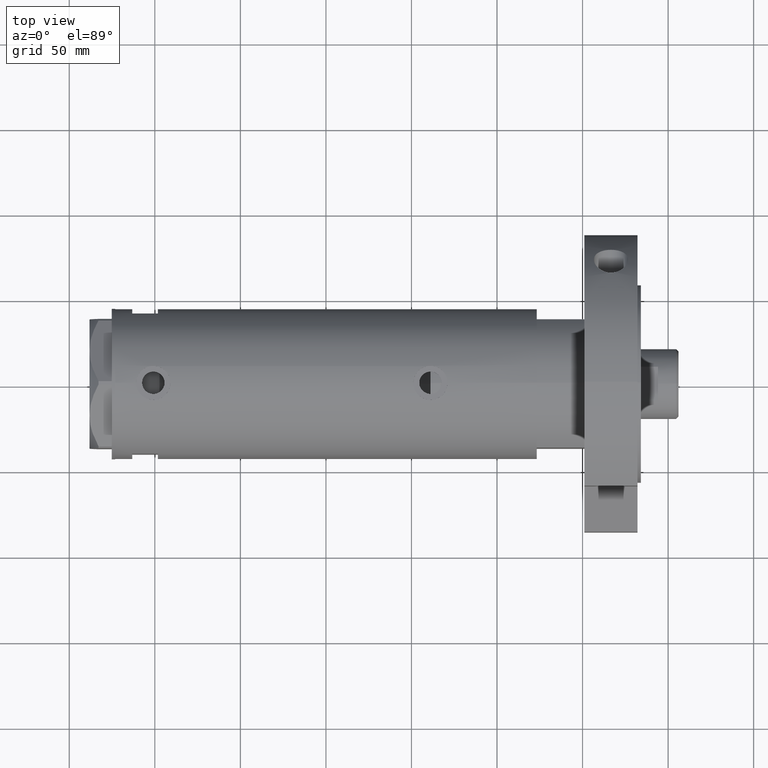
[diagram: clean part render]
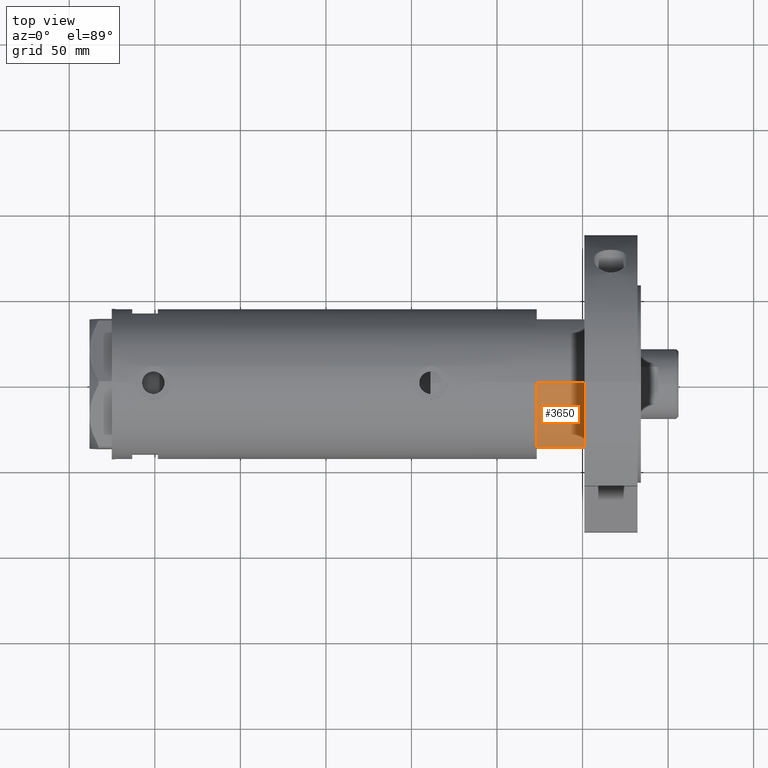
[diagram: same view with one face highlighted and labeled with its STEP entity id]
A machine part, top view. The second image highlights one B-rep face of the part: STEP entity #3650.
In plain terms, the highlighted cylindrical surface (partial cylindrical patch) has radius 44 mm, axis along (-1, -0, 0).
Its self-contained STEP definition (entity closure, byte-faithful):
#394 = VECTOR ( 'NONE', #6437, 1000.000000000000000 ) ;
#481 = CARTESIAN_POINT ( 'NONE',  ( -44.00000000000000000, 0.000000000000000000, 27.89999999999999858 ) ) ;
#558 = DIRECTION ( 'NONE',  ( -0.000000000000000000, -0.000000000000000000, -1.000000000000000000 ) ) ;
#830 = DIRECTION ( 'NONE',  ( -0.000000000000000000, -0.000000000000000000, -1.000000000000000000 ) ) ;
#1103 = ORIENTED_EDGE ( 'NONE', *, *, #6548, .T. ) ;
#1413 = CARTESIAN_POINT ( 'NONE',  ( 0.000000000000000000, 0.000000000000000000, 27.89999999999999858 ) ) ;
#1531 = CARTESIAN_POINT ( 'NONE',  ( -44.00000000000000000, 0.000000000000000000, 0.000000000000000000 ) ) ;
#1697 = VERTEX_POINT ( 'NONE', #481 ) ;
#1721 = DIRECTION ( 'NONE',  ( 0.000000000000000000, 0.000000000000000000, 1.000000000000000000 ) ) ;
#2463 = EDGE_CURVE ( 'NONE', #4795, #5416, #6165, .T. ) ;
#2871 = LINE ( 'NONE', #4107, #394 ) ;
#2886 = ORIENTED_EDGE ( 'NONE', *, *, #2463, .T. ) ;
#3066 = CARTESIAN_POINT ( 'NONE',  ( -23.01629857296780557, -37.50000000000000000, 0.000000000000000000 ) ) ;
#3148 = CIRCLE ( 'NONE', #4111, 44.00000000000000000 ) ;
#3185 = EDGE_LOOP ( 'NONE', ( #4271, #4583, #2886, #1103 ) ) ;
#3594 = AXIS2_PLACEMENT_3D ( 'NONE', #4127, #5894, #6493 ) ;
#3650 = ADVANCED_FACE ( 'NONE', ( #5580 ), #3791, .T. ) ;
#3791 = CYLINDRICAL_SURFACE ( 'NONE', #7399, 44.00000000000000000 ) ;
#3815 = EDGE_CURVE ( 'NONE', #1697, #6953, #3148, .T. ) ;
#4107 = CARTESIAN_POINT ( 'NONE',  ( -23.01629857296780557, -37.50000000000000000, 0.000000000000000000 ) ) ;
#4111 = AXIS2_PLACEMENT_3D ( 'NONE', #7410, #1721, #7523 ) ;
#4127 = CARTESIAN_POINT ( 'NONE',  ( 0.000000000000000000, 0.000000000000000000, 0.000000000000000000 ) ) ;
#4271 = ORIENTED_EDGE ( 'NONE', *, *, #3815, .F. ) ;
#4583 = ORIENTED_EDGE ( 'NONE', *, *, #6818, .T. ) ;
#4795 = VERTEX_POINT ( 'NONE', #1531 ) ;
#4943 = DIRECTION ( 'NONE',  ( -1.000000000000000000, 0.000000000000000000, 0.000000000000000000 ) ) ;
#5416 = VERTEX_POINT ( 'NONE', #3066 ) ;
#5580 = FACE_OUTER_BOUND ( 'NONE', #3185, .T. ) ;
#5894 = DIRECTION ( 'NONE',  ( 0.000000000000000000, 0.000000000000000000, 1.000000000000000000 ) ) ;
#6165 = CIRCLE ( 'NONE', #3594, 44.00000000000000000 ) ;
#6237 = VECTOR ( 'NONE', #558, 1000.000000000000000 ) ;
#6316 = CARTESIAN_POINT ( 'NONE',  ( -23.01629857296780557, -37.50000000000000000, 27.89999999999999858 ) ) ;
#6391 = LINE ( 'NONE', #6428, #6237 ) ;
#6428 = CARTESIAN_POINT ( 'NONE',  ( -44.00000000000000000, 0.000000000000000000, 27.89999999999999858 ) ) ;
#6437 = DIRECTION ( 'NONE',  ( -0.000000000000000000, -0.000000000000000000, 1.000000000000000000 ) ) ;
#6493 = DIRECTION ( 'NONE',  ( 1.000000000000000000, 0.000000000000000000, 0.000000000000000000 ) ) ;
#6548 = EDGE_CURVE ( 'NONE', #5416, #6953, #2871, .T. ) ;
#6818 = EDGE_CURVE ( 'NONE', #1697, #4795, #6391, .T. ) ;
#6953 = VERTEX_POINT ( 'NONE', #6316 ) ;
#7399 = AXIS2_PLACEMENT_3D ( 'NONE', #1413, #830, #4943 ) ;
#7410 = CARTESIAN_POINT ( 'NONE',  ( 0.000000000000000000, 0.000000000000000000, 27.89999999999999858 ) ) ;
#7523 = DIRECTION ( 'NONE',  ( 1.000000000000000000, 0.000000000000000000, 0.000000000000000000 ) ) ;